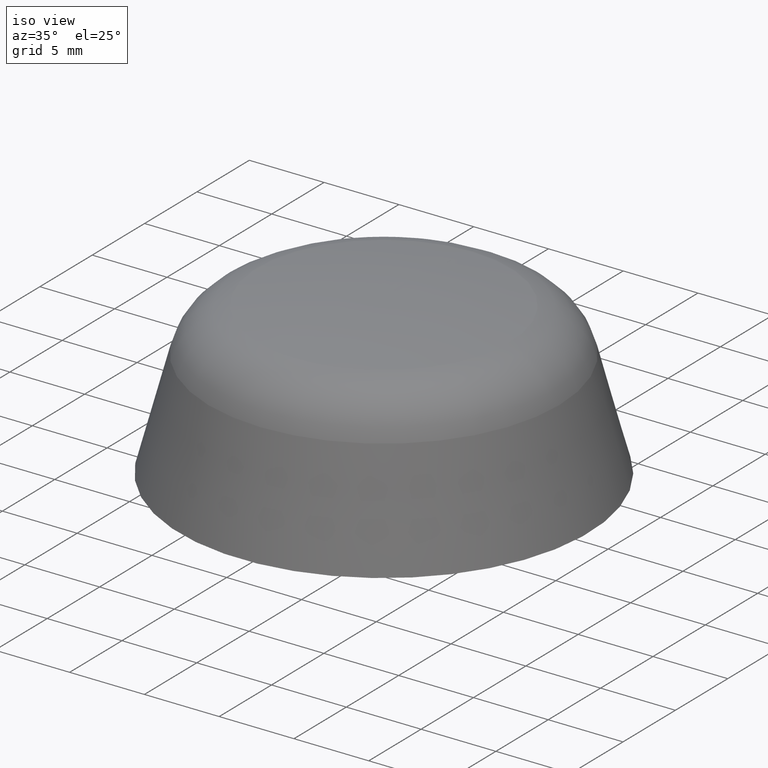
[diagram: clean part render]
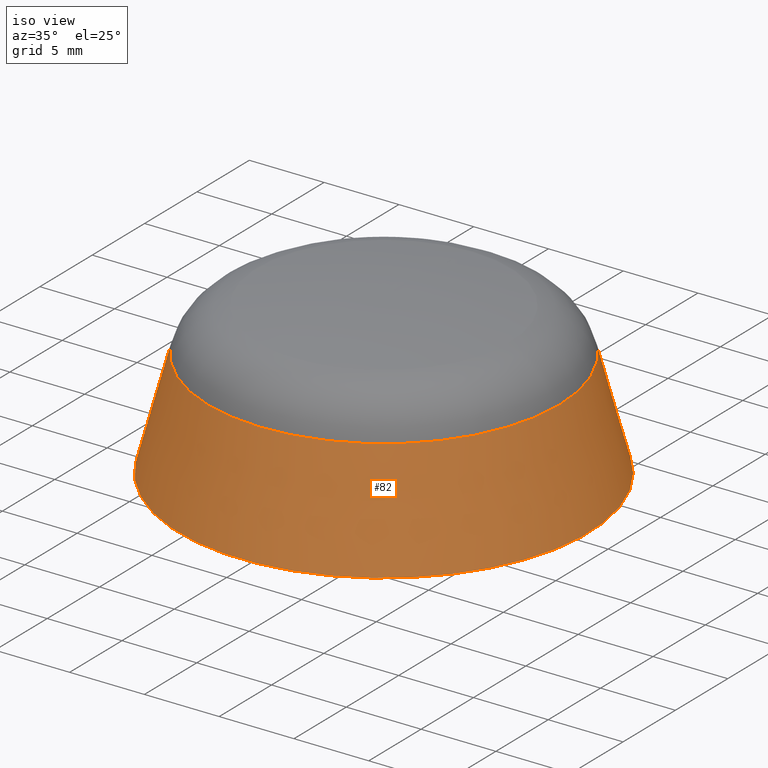
[diagram: same view with one face highlighted and labeled with its STEP entity id]
A machine part, iso view. The second image highlights one B-rep face of the part: STEP entity #82.
In plain terms, the highlighted conical surface has half-angle 15 deg.
Its self-contained STEP definition (entity closure, byte-faithful):
#82 = ADVANCED_FACE( '', ( #105, #106 ), #107, .T. );
#105 = FACE_BOUND( '', #165, .T. );
#106 = FACE_OUTER_BOUND( '', #166, .T. );
#107 = CONICAL_SURFACE( '', #167, 13.6654661239059, 0.261799387799149 );
#165 = EDGE_LOOP( '', ( #202 ) );
#166 = EDGE_LOOP( '', ( #203 ) );
#167 = AXIS2_PLACEMENT_3D( '', #204, #205, #206 );
#202 = ORIENTED_EDGE( '', *, *, #219, .T. );
#203 = ORIENTED_EDGE( '', *, *, #220, .F. );
#204 = CARTESIAN_POINT( '', ( 0.000000000000000, -5.20457700374510E-016, 0.000000000000000 ) );
#205 = DIRECTION( '', ( 0.000000000000000, -6.12303176911189E-017, -1.00000000000000 ) );
#206 = DIRECTION( '', ( 0.000000000000000, 1.00000000000000, -6.12303176911189E-017 ) );
#219 = EDGE_CURVE( '', #233, #233, #234, .T. );
#220 = EDGE_CURVE( '', #235, #235, #236, .T. );
#233 = VERTEX_POINT( '', #249 );
#234 = CIRCLE( '', #250, 11.7310204531147 );
#235 = VERTEX_POINT( '', #251 );
#236 = CIRCLE( '', #252, 13.6654661239059 );
#249 = CARTESIAN_POINT( '', ( 0.000000000000000, 11.7310204531147, 7.21944952787435 ) );
#250 = AXIS2_PLACEMENT_3D( '', #271, #272, #273 );
#251 = CARTESIAN_POINT( '', ( 0.000000000000000, 13.6654661239059, -8.36740832163978E-016 ) );
#252 = AXIS2_PLACEMENT_3D( '', #274, #275, #276 );
#271 = CARTESIAN_POINT( '', ( 0.000000000000000, -7.84085122277661E-017, 7.21944952787435 ) );
#272 = DIRECTION( '', ( 0.000000000000000, -6.12303176911189E-017, -1.00000000000000 ) );
#273 = DIRECTION( '', ( 0.000000000000000, 1.00000000000000, -6.12303176911189E-017 ) );
#274 = CARTESIAN_POINT( '', ( 0.000000000000000, -5.20457700374510E-016, 0.000000000000000 ) );
#275 = DIRECTION( '', ( 0.000000000000000, -6.12303176911189E-017, -1.00000000000000 ) );
#276 = DIRECTION( '', ( 0.000000000000000, 1.00000000000000, -6.12303176911189E-017 ) );